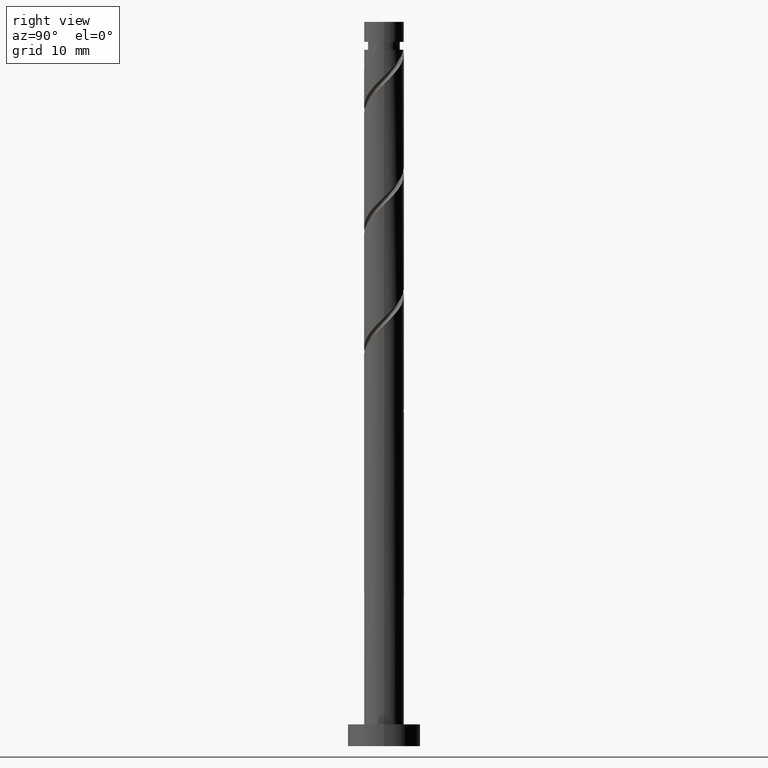
[diagram: clean part render]
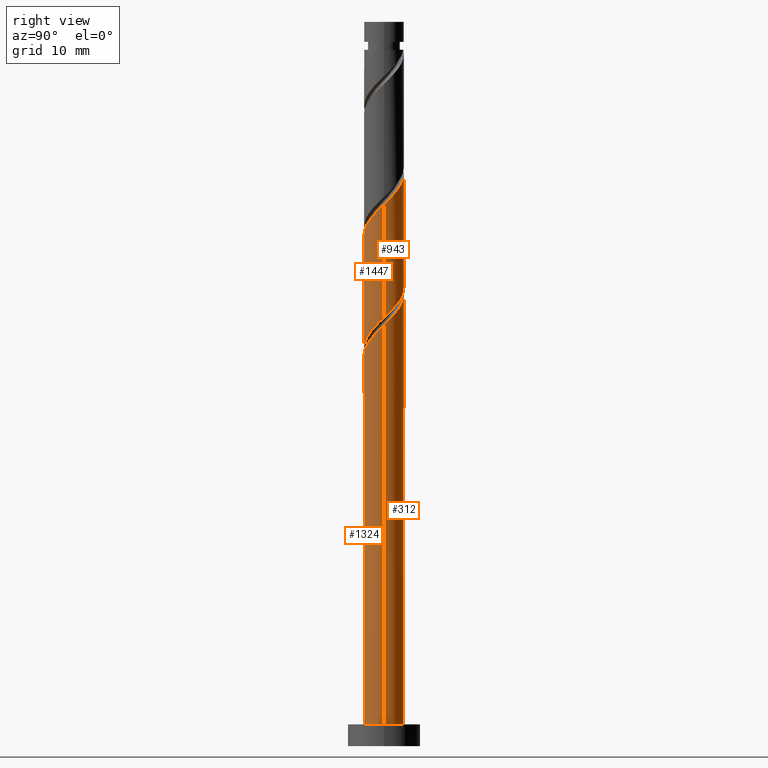
[diagram: same view with one multi-face feature highlighted, each face labeled with its STEP entity id]
A machine part, right view. The highlighted faces form ONE feature: a constant-radius fillet chain: 4 tangent blend faces with common blend radius 2.75 mm. The faces share edges in the B-rep.
Their STEP definitions:
[1] entity #1324 (Cylinder):
#8 = VERTEX_POINT ( 'NONE', #1074 ) ;
#75 = ORIENTED_EDGE ( 'NONE', *, *, #615, .T. ) ;
#80 = CARTESIAN_POINT ( 'NONE',  ( -1.313100079662429698, -2.416250852206894173, 52.62487553280764274 ) ) ;
#87 = DIRECTION ( 'NONE',  ( -0.000000000000000000, -0.000000000000000000, -1.000000000000000000 ) ) ;
#113 = CIRCLE ( 'NONE', #1360, 2.750000000000000000 ) ;
#178 = EDGE_CURVE ( 'NONE', #190, #269, #1047, .T. ) ;
#184 = DIRECTION ( 'NONE',  ( -0.000000000000000000, -0.000000000000000000, -1.000000000000000000 ) ) ;
#190 = VERTEX_POINT ( 'NONE', #1225 ) ;
#193 = LINE ( 'NONE', #1086, #454 ) ;
#210 = DIRECTION ( 'NONE',  ( 1.000000000000000000, 0.000000000000000000, 0.000000000000000000 ) ) ;
#212 = CARTESIAN_POINT ( 'NONE',  ( -0.4075039924296025018, -2.719639773233572200, 53.55080145873357367 ) ) ;
#220 = CARTESIAN_POINT ( 'NONE',  ( -2.060316917994744479, -1.821426418339389341, 51.69894960688171182 ) ) ;
#269 = VERTEX_POINT ( 'NONE', #912 ) ;
#301 = CARTESIAN_POINT ( 'NONE',  ( -2.750000000000003553, -0.03547960441305744034, 49.81322320360308709 ) ) ;
#327 = CARTESIAN_POINT ( 'NONE',  ( -0.8870498622585319959, -2.647785824621815554, 53.08783849577060465 ) ) ;
#384 = VECTOR ( 'NONE', #87, 1000.000000000000000 ) ;
#419 = LINE ( 'NONE', #523, #384 ) ;
#436 = CARTESIAN_POINT ( 'NONE',  ( -2.559029128977624357, -1.006911077029169155, 50.77302368095578800 ) ) ;
#454 = VECTOR ( 'NONE', #184, 1000.000000000000000 ) ;
#523 = CARTESIAN_POINT ( 'NONE',  ( -2.750000000000000000, 0.000000000000000000, 100.0000000000000000 ) ) ;
#537 = CARTESIAN_POINT ( 'NONE',  ( 2.750000000000000000, 3.367778697655220519E-16, 3.000000000000000000 ) ) ;
#539 = CARTESIAN_POINT ( 'NONE',  ( 1.849524856773553827, -2.092100627450284467, 55.86561627354838322 ) ) ;
#574 = EDGE_CURVE ( 'NONE', #269, #587, #193, .T. ) ;
#587 = VERTEX_POINT ( 'NONE', #537 ) ;
#615 = EDGE_CURVE ( 'NONE', #8, #587, #113, .T. ) ;
#646 = DIRECTION ( 'NONE',  ( 0.000000000000000000, 0.000000000000000000, 1.000000000000000000 ) ) ;
#648 = CARTESIAN_POINT ( 'NONE',  ( -2.749084659758183502, -0.07094739940441305293, 49.84709775502984996 ) ) ;
#655 = CARTESIAN_POINT ( 'NONE',  ( -2.750000000000003109, 1.542448295966774834E-15, 49.77920582967072249 ) ) ;
#659 = CYLINDRICAL_SURFACE ( 'NONE', #993, 2.750000000000000000 ) ;
#661 = EDGE_CURVE ( 'NONE', #190, #8, #419, .T. ) ;
#664 = CARTESIAN_POINT ( 'NONE',  ( 2.750000000000004885, -0.4483995225062563650, 57.68261965063845054 ) ) ;
#745 = CARTESIAN_POINT ( 'NONE',  ( 0.000000000000000000, 0.000000000000000000, 100.0000000000000000 ) ) ;
#748 = CARTESIAN_POINT ( 'NONE',  ( 0.5472430904086417192, -2.695000000000003837, 54.47672738465949749 ) ) ;
#862 = DIRECTION ( 'NONE',  ( -0.000000000000000000, -0.000000000000000000, -1.000000000000000000 ) ) ;
#912 = CARTESIAN_POINT ( 'NONE',  ( 2.750000000000003109, -1.587265195607455962E-15, 58.11253916300406530 ) ) ;
#990 = CARTESIAN_POINT ( 'NONE',  ( 2.453525416322490216, -1.333356764958522733, 56.79154219947431415 ) ) ;
#992 = ORIENTED_EDGE ( 'NONE', *, *, #178, .F. ) ;
#993 = AXIS2_PLACEMENT_3D ( 'NONE', #745, #862, #1465 ) ;
#1006 = CARTESIAN_POINT ( 'NONE',  ( -2.736574719032086378, -0.5556851971715316418, 50.31006071799281898 ) ) ;
#1047 =( BOUNDED_CURVE ( )  B_SPLINE_CURVE ( 2, ( #655, #301, #648, #1006, #436, #1349, #220, #1104, #80, #327, #212, #1218, #748, #1112, #1444, #539, #1209, #990, #1234, #664, #1452 ),
 .UNSPECIFIED., .F., .T. ) 
 B_SPLINE_CURVE_WITH_KNOTS ( ( 3, 2, 2, 2, 2, 2, 2, 2, 2, 2, 3 ),
 ( 0.05452480538552906958, 0.05555555555555558023, 0.06944444444444441977, 0.08333333333333337034, 0.09722222222222220989, 0.1111111111111111605, 0.1250000000000000000, 0.1388888888888888395, 0.1527777777777777901, 0.1666666666666666297, 0.1795248053855291182 ),
 .UNSPECIFIED. ) 
 CURVE ( )  GEOMETRIC_REPRESENTATION_ITEM ( )  RATIONAL_B_SPLINE_CURVE ( ( 0.9071930855141259187, 0.9080659294509735302, 0.9090909090909136125, 0.8952797754656481866, 0.9090909090909136125, 0.8952797754656481866, 0.9090909090909136125, 0.8952797754656481866, 0.9090909090909136125, 0.8952797754656481866, 0.9090909090909136125, 0.8952797754656481866, 0.9090909090909136125, 0.8952797754656481866, 0.9090909090909136125, 0.8952797754656481866, 0.9090909090909136125, 0.8952797754656481866, 0.9090909090909136125, 0.8963047551055881579, 0.9071930855141260297 ) ) 
 REPRESENTATION_ITEM ( '' )  );
#1074 = CARTESIAN_POINT ( 'NONE',  ( -2.750000000000000000, 0.000000000000000000, 3.000000000000000000 ) ) ;
#1082 = EDGE_LOOP ( 'NONE', ( #1390, #992, #1176, #75 ) ) ;
#1086 = CARTESIAN_POINT ( 'NONE',  ( 2.750000000000000000, 3.367778697655220519E-16, 100.0000000000000000 ) ) ;
#1104 = CARTESIAN_POINT ( 'NONE',  ( -1.739150297066326178, -2.184715879791973681, 52.16191256984467373 ) ) ;
#1112 = CARTESIAN_POINT ( 'NONE',  ( 1.022444303417954892, -2.598506278154678828, 54.93969034762245229 ) ) ;
#1176 = ORIENTED_EDGE ( 'NONE', *, *, #661, .T. ) ;
#1209 = CARTESIAN_POINT ( 'NONE',  ( 2.151525136548022132, -1.712728696204402823, 56.32857923651133802 ) ) ;
#1218 = CARTESIAN_POINT ( 'NONE',  ( 0.07204187739932713108, -2.791493721845329290, 54.01376442169652847 ) ) ;
#1221 = FACE_OUTER_BOUND ( 'NONE', #1082, .T. ) ;
#1225 = CARTESIAN_POINT ( 'NONE',  ( -2.750000000000003109, 1.542448295966774834E-15, 49.77920582967072249 ) ) ;
#1234 = CARTESIAN_POINT ( 'NONE',  ( 2.607560008403386753, -0.8735735816606149395, 57.25450516243728316 ) ) ;
#1324 = ADVANCED_FACE ( 'NONE', ( #1221 ), #659, .T. ) ;
#1326 = CARTESIAN_POINT ( 'NONE',  ( 0.000000000000000000, 0.000000000000000000, 3.000000000000000000 ) ) ;
#1349 = CARTESIAN_POINT ( 'NONE',  ( -2.381483538923163223, -1.458136956886807223, 51.23598664391874991 ) ) ;
#1360 = AXIS2_PLACEMENT_3D ( 'NONE', #1326, #646, #210 ) ;
#1390 = ORIENTED_EDGE ( 'NONE', *, *, #574, .F. ) ;
#1444 = CARTESIAN_POINT ( 'NONE',  ( 1.435984580095754914, -2.345303452802481203, 55.40265331058541420 ) ) ;
#1452 = CARTESIAN_POINT ( 'NONE',  ( 2.750000000000003553, -1.587265195607455962E-15, 58.11253916300406530 ) ) ;
#1465 = DIRECTION ( 'NONE',  ( -1.000000000000000000, 0.000000000000000000, 0.000000000000000000 ) ) ;
[2] entity #312 (Cylinder):
#8 = VERTEX_POINT ( 'NONE', #1074 ) ;
#54 = LINE ( 'NONE', #150, #593 ) ;
#57 = CARTESIAN_POINT ( 'NONE',  ( -2.381483538923158338, 1.458136956886805002, 49.38413479206689516 ) ) ;
#82 =( BOUNDED_CURVE ( )  B_SPLINE_CURVE ( 2, ( #1482, #448, #1370, #1147, #1032, #792, #117, #899, #1025 ),
 .UNSPECIFIED., .F., .T. ) 
 B_SPLINE_CURVE_WITH_KNOTS ( ( 3, 2, 2, 2, 3 ),
 ( 0.000000000000000000, 0.01388888888888883955, 0.02777777777777779011, 0.04166666666666662966, 0.05452480538552906958 ),
 .UNSPECIFIED. ) 
 CURVE ( )  GEOMETRIC_REPRESENTATION_ITEM ( )  RATIONAL_B_SPLINE_CURVE ( ( 0.9090909090909136125, 0.8952797754656481866, 0.9090909090909136125, 0.8952797754656481866, 0.9090909090909136125, 0.8952797754656481866, 0.9090909090909136125, 0.8963047551055882689, 0.9071930855141259187 ) ) 
 REPRESENTATION_ITEM ( '' )  );
#87 = DIRECTION ( 'NONE',  ( -0.000000000000000000, -0.000000000000000000, -1.000000000000000000 ) ) ;
#103 = CARTESIAN_POINT ( 'NONE',  ( 2.559029128977625245, 1.006911077029168267, 59.10635701428912370 ) ) ;
#117 = CARTESIAN_POINT ( 'NONE',  ( -2.607560008403386753, 0.8735735816606139403, 48.92117182910395456 ) ) ;
#126 = CARTESIAN_POINT ( 'NONE',  ( -1.022444303417955780, 2.598506278154677940, 63.27302368095577378 ) ) ;
#133 = EDGE_CURVE ( 'NONE', #790, #750, #1251, .T. ) ;
#150 = CARTESIAN_POINT ( 'NONE',  ( -2.750000000000000000, 0.000000000000000000, 100.0000000000000000 ) ) ;
#166 = CARTESIAN_POINT ( 'NONE',  ( -2.736574719032081937, 0.5556851971715314198, 50.31006071799282608 ) ) ;
#172 = CARTESIAN_POINT ( 'NONE',  ( -2.749999999999999112, 0.03547960441305787055, 50.80689823238253666 ) ) ;
#184 = DIRECTION ( 'NONE',  ( -0.000000000000000000, -0.000000000000000000, -1.000000000000000000 ) ) ;
#190 = VERTEX_POINT ( 'NONE', #1225 ) ;
#193 = LINE ( 'NONE', #1086, #454 ) ;
#197 = ORIENTED_EDGE ( 'NONE', *, *, #1418, .F. ) ;
#242 = CARTESIAN_POINT ( 'NONE',  ( -2.607560008403386753, 0.8735735816606139403, 65.58783849577059755 ) ) ;
#247 = EDGE_CURVE ( 'NONE', #269, #1189, #1406, .T. ) ;
#257 = CARTESIAN_POINT ( 'NONE',  ( -2.750000000000002665, 0.4483995225062583634, 66.01595298397175782 ) ) ;
#269 = VERTEX_POINT ( 'NONE', #912 ) ;
#279 = CARTESIAN_POINT ( 'NONE',  ( -2.749999999999999112, -8.403168682627763195E-16, 50.84091560631491546 ) ) ;
#287 = CARTESIAN_POINT ( 'NONE',  ( -2.559029128977620360, 1.006911077029168045, 49.84709775502985707 ) ) ;
#293 = CARTESIAN_POINT ( 'NONE',  ( -0.8870498622585303305, 2.647785824621812001, 47.53228294021504752 ) ) ;
#296 = AXIS2_PLACEMENT_3D ( 'NONE', #1036, #678, #372 ) ;
#312 = ADVANCED_FACE ( 'NONE', ( #470 ), #561, .T. ) ;
#341 = CARTESIAN_POINT ( 'NONE',  ( 0.4075039924296040561, 2.719639773233572200, 61.88413479206690226 ) ) ;
#372 = DIRECTION ( 'NONE',  ( -1.000000000000000000, 0.000000000000000000, 0.000000000000000000 ) ) ;
#384 = VECTOR ( 'NONE', #87, 1000.000000000000000 ) ;
#411 = CARTESIAN_POINT ( 'NONE',  ( -2.750000000000003109, 1.542448295966774834E-15, 66.44587249633738679 ) ) ;
#419 = LINE ( 'NONE', #523, #384 ) ;
#427 = CIRCLE ( 'NONE', #830, 2.750000000000000000 ) ;
#448 = CARTESIAN_POINT ( 'NONE',  ( -1.022444303417955780, 2.598506278154677940, 46.60635701428910949 ) ) ;
#453 = CARTESIAN_POINT ( 'NONE',  ( -2.151525136548022132, 1.712728696204402823, 64.66191256984467373 ) ) ;
#454 = VECTOR ( 'NONE', #184, 1000.000000000000000 ) ;
#456 = ORIENTED_EDGE ( 'NONE', *, *, #838, .T. ) ;
#470 = FACE_OUTER_BOUND ( 'NONE', #1001, .T. ) ;
#518 = CARTESIAN_POINT ( 'NONE',  ( -2.060316917994740482, 1.821426418339388231, 48.92117182910395456 ) ) ;
#523 = CARTESIAN_POINT ( 'NONE',  ( -2.750000000000000000, 0.000000000000000000, 100.0000000000000000 ) ) ;
#525 = CARTESIAN_POINT ( 'NONE',  ( 2.749084659758183502, 0.07094739940441324721, 58.18043108836319277 ) ) ;
#537 = CARTESIAN_POINT ( 'NONE',  ( 2.750000000000000000, 3.367778697655220519E-16, 3.000000000000000000 ) ) ;
#561 = CYLINDRICAL_SURFACE ( 'NONE', #296, 2.750000000000000000 ) ;
#568 = CARTESIAN_POINT ( 'NONE',  ( -0.5472430904086411640, 2.695000000000003837, 62.81006071799283319 ) ) ;
#574 = EDGE_CURVE ( 'NONE', #269, #587, #193, .T. ) ;
#585 = CARTESIAN_POINT ( 'NONE',  ( -1.849524856773554271, 2.092100627450284023, 64.19894960688171182 ) ) ;
#587 = VERTEX_POINT ( 'NONE', #537 ) ;
#593 = VECTOR ( 'NONE', #617, 1000.000000000000000 ) ;
#617 = DIRECTION ( 'NONE',  ( -0.000000000000000000, -0.000000000000000000, -1.000000000000000000 ) ) ;
#637 = CARTESIAN_POINT ( 'NONE',  ( 0.000000000000000000, 0.000000000000000000, 3.000000000000000000 ) ) ;
#641 = CARTESIAN_POINT ( 'NONE',  ( 0.5472430904086420522, 2.694999999999999396, 46.14339405132615468 ) ) ;
#661 = EDGE_CURVE ( 'NONE', #190, #8, #419, .T. ) ;
#678 = DIRECTION ( 'NONE',  ( -0.000000000000000000, -0.000000000000000000, -1.000000000000000000 ) ) ;
#692 = CARTESIAN_POINT ( 'NONE',  ( -0.5472430904086411640, 2.695000000000003837, 46.14339405132615468 ) ) ;
#728 = CARTESIAN_POINT ( 'NONE',  ( -2.749084659758179949, 0.07094739940441363579, 50.77302368095578089 ) ) ;
#750 = VERTEX_POINT ( 'NONE', #811 ) ;
#777 = AXIS2_PLACEMENT_3D ( 'NONE', #637, #1323, #1206 ) ;
#780 = CARTESIAN_POINT ( 'NONE',  ( 2.750000000000003553, -1.587265195607455962E-15, 58.11253916300406530 ) ) ;
#786 = CARTESIAN_POINT ( 'NONE',  ( -2.749999999999999556, -8.403168682627763195E-16, 50.84091560631490836 ) ) ;
#790 = VERTEX_POINT ( 'NONE', #786 ) ;
#792 = CARTESIAN_POINT ( 'NONE',  ( -2.453525416322491104, 1.333356764958522511, 48.45820886614096423 ) ) ;
#796 = CARTESIAN_POINT ( 'NONE',  ( 1.313100079662430142, 2.416250852206894173, 60.95820886614096423 ) ) ;
#811 = CARTESIAN_POINT ( 'NONE',  ( 0.5472430904086420522, 2.694999999999999396, 46.14339405132615468 ) ) ;
#812 = CARTESIAN_POINT ( 'NONE',  ( 0.000000000000000000, 0.000000000000000000, 46.14339405132619021 ) ) ;
#821 = CARTESIAN_POINT ( 'NONE',  ( -1.435984580095755359, 2.345303452802481203, 63.73598664391875701 ) ) ;
#823 = VERTEX_POINT ( 'NONE', #692 ) ;
#830 = AXIS2_PLACEMENT_3D ( 'NONE', #812, #1394, #1281 ) ;
#838 = EDGE_CURVE ( 'NONE', #823, #750, #427, .T. ) ;
#859 = CARTESIAN_POINT ( 'NONE',  ( -1.313100079662427033, 2.416250852206890620, 47.99524590317801653 ) ) ;
#887 = CARTESIAN_POINT ( 'NONE',  ( -0.4075039924296010585, 2.719639773233568647, 47.06931997725208561 ) ) ;
#899 = CARTESIAN_POINT ( 'NONE',  ( -2.750000000000003109, 0.4483995225062563095, 49.34928631730510773 ) ) ;
#905 = CARTESIAN_POINT ( 'NONE',  ( -2.750000000000002665, 1.542448295966774834E-15, 66.44587249633738679 ) ) ;
#908 = ORIENTED_EDGE ( 'NONE', *, *, #1080, .F. ) ;
#912 = CARTESIAN_POINT ( 'NONE',  ( 2.750000000000003109, -1.587265195607455962E-15, 58.11253916300406530 ) ) ;
#970 = CARTESIAN_POINT ( 'NONE',  ( -1.739150297066323292, 2.184715879791970128, 48.45820886614097134 ) ) ;
#976 = CARTESIAN_POINT ( 'NONE',  ( 2.736574719032086378, 0.5556851971715313088, 58.64339405132616179 ) ) ;
#1001 = EDGE_LOOP ( 'NONE', ( #1446, #1015, #1252, #1169, #197, #456, #1106, #908 ) ) ;
#1013 = CARTESIAN_POINT ( 'NONE',  ( 2.060316917994744479, 1.821426418339390230, 60.03228294021504752 ) ) ;
#1015 = ORIENTED_EDGE ( 'NONE', *, *, #574, .T. ) ;
#1025 = CARTESIAN_POINT ( 'NONE',  ( -2.750000000000003109, 1.542448295966774834E-15, 49.77920582967072249 ) ) ;
#1032 = CARTESIAN_POINT ( 'NONE',  ( -2.151525136548022132, 1.712728696204402823, 47.99524590317801653 ) ) ;
#1036 = CARTESIAN_POINT ( 'NONE',  ( 0.000000000000000000, 0.000000000000000000, 100.0000000000000000 ) ) ;
#1067 = CIRCLE ( 'NONE', #777, 2.750000000000000000 ) ;
#1074 = CARTESIAN_POINT ( 'NONE',  ( -2.750000000000000000, 0.000000000000000000, 3.000000000000000000 ) ) ;
#1080 = EDGE_CURVE ( 'NONE', #1189, #790, #54, .T. ) ;
#1086 = CARTESIAN_POINT ( 'NONE',  ( 2.750000000000000000, 3.367778697655220519E-16, 100.0000000000000000 ) ) ;
#1106 = ORIENTED_EDGE ( 'NONE', *, *, #133, .F. ) ;
#1119 = CARTESIAN_POINT ( 'NONE',  ( 0.07204187739932838008, 2.791493721845324849, 46.60635701428910949 ) ) ;
#1147 = CARTESIAN_POINT ( 'NONE',  ( -1.849524856773554271, 2.092100627450284023, 47.53228294021504041 ) ) ;
#1169 = ORIENTED_EDGE ( 'NONE', *, *, #661, .F. ) ;
#1189 = VERTEX_POINT ( 'NONE', #411 ) ;
#1206 = DIRECTION ( 'NONE',  ( 1.000000000000000000, 0.000000000000000000, 0.000000000000000000 ) ) ;
#1212 = EDGE_CURVE ( 'NONE', #587, #8, #1067, .T. ) ;
#1225 = CARTESIAN_POINT ( 'NONE',  ( -2.750000000000003109, 1.542448295966774834E-15, 49.77920582967072249 ) ) ;
#1243 = CARTESIAN_POINT ( 'NONE',  ( 2.750000000000003109, 0.03547960441305920282, 58.14655653693641568 ) ) ;
#1249 = CARTESIAN_POINT ( 'NONE',  ( 2.381483538923164556, 1.458136956886805224, 59.56931997725207850 ) ) ;
#1251 =( BOUNDED_CURVE ( )  B_SPLINE_CURVE ( 2, ( #279, #172, #728, #166, #287, #57, #518, #970, #859, #293, #887, #1119, #641 ),
 .UNSPECIFIED., .F., .T. ) 
 B_SPLINE_CURVE_WITH_KNOTS ( ( 3, 2, 2, 2, 2, 2, 3 ),
 ( 0.9295248053855290626, 0.9305555555555555802, 0.9444444444444444198, 0.9583333333333333703, 0.9722222222222222099, 0.9861111111111111605, 1.000000000000000000 ),
 .UNSPECIFIED. ) 
 CURVE ( )  GEOMETRIC_REPRESENTATION_ITEM ( )  RATIONAL_B_SPLINE_CURVE ( ( 0.9071930855141199235, 0.9080659294509675350, 0.9090909090909076173, 0.8952797754656421914, 0.9090909090909076173, 0.8952797754656421914, 0.9090909090909076173, 0.8952797754656421914, 0.9090909090909076173, 0.8952797754656421914, 0.9090909090909076173, 0.8952797754656421914, 0.9090909090909076173 ) ) 
 REPRESENTATION_ITEM ( '' )  );
#1252 = ORIENTED_EDGE ( 'NONE', *, *, #1212, .T. ) ;
#1267 = CARTESIAN_POINT ( 'NONE',  ( -0.07204187739932789436, 2.791493721845329290, 62.34709775502985707 ) ) ;
#1281 = DIRECTION ( 'NONE',  ( 0.000000000000000000, 1.000000000000000000, -1.261617073437677930E-14 ) ) ;
#1282 = CARTESIAN_POINT ( 'NONE',  ( -2.453525416322491104, 1.333356764958522511, 65.12487553280764985 ) ) ;
#1323 = DIRECTION ( 'NONE',  ( 0.000000000000000000, 0.000000000000000000, 1.000000000000000000 ) ) ;
#1366 = CARTESIAN_POINT ( 'NONE',  ( 0.8870498622585334392, 2.647785824621815554, 61.42117182910393325 ) ) ;
#1370 = CARTESIAN_POINT ( 'NONE',  ( -1.435984580095755359, 2.345303452802481203, 47.06931997725207850 ) ) ;
#1394 = DIRECTION ( 'NONE',  ( -2.801352646381430560E-30, -1.261617073437677141E-14, -1.000000000000000000 ) ) ;
#1406 =( BOUNDED_CURVE ( )  B_SPLINE_CURVE ( 2, ( #780, #1243, #525, #976, #103, #1249, #1013, #1477, #796, #1366, #341, #1267, #568, #126, #821, #585, #453, #1282, #242, #257, #905 ),
 .UNSPECIFIED., .F., .T. ) 
 B_SPLINE_CURVE_WITH_KNOTS ( ( 3, 2, 2, 2, 2, 2, 2, 2, 2, 2, 3 ),
 ( 0.1795248053855291182, 0.1805555555555555802, 0.1944444444444444198, 0.2083333333333333703, 0.2222222222222222099, 0.2361111111111111605, 0.2500000000000000000, 0.2638888888888888395, 0.2777777777777777901, 0.2916666666666666297, 0.3045248053855290071 ),
 .UNSPECIFIED. ) 
 CURVE ( )  GEOMETRIC_REPRESENTATION_ITEM ( )  RATIONAL_B_SPLINE_CURVE ( ( 0.9071930855141260297, 0.9080659294509736412, 0.9090909090909136125, 0.8952797754656481866, 0.9090909090909136125, 0.8952797754656481866, 0.9090909090909136125, 0.8952797754656481866, 0.9090909090909136125, 0.8952797754656481866, 0.9090909090909136125, 0.8952797754656481866, 0.9090909090909136125, 0.8952797754656481866, 0.9090909090909136125, 0.8952797754656481866, 0.9090909090909136125, 0.8952797754656481866, 0.9090909090909136125, 0.8963047551055883799, 0.9071930855141256966 ) ) 
 REPRESENTATION_ITEM ( '' )  );
#1418 = EDGE_CURVE ( 'NONE', #823, #190, #82, .T. ) ;
#1446 = ORIENTED_EDGE ( 'NONE', *, *, #247, .F. ) ;
#1477 = CARTESIAN_POINT ( 'NONE',  ( 1.739150297066326178, 2.184715879791973236, 60.49524590317800943 ) ) ;
#1482 = CARTESIAN_POINT ( 'NONE',  ( -0.5472430904086411640, 2.695000000000003837, 46.14339405132615468 ) ) ;
[3] entity #1447 (Cylinder):
#1 = ORIENTED_EDGE ( 'NONE', *, *, #965, .F. ) ;
#3 = CYLINDRICAL_SURFACE ( 'NONE', #138, 2.750000000000000000 ) ;
#41 = CARTESIAN_POINT ( 'NONE',  ( -2.151525136548020800, -1.712728696204399492, 52.62487553280764274 ) ) ;
#48 = CARTESIAN_POINT ( 'NONE',  ( -2.749999999999999556, -0.4483995225062551993, 51.27083511868053733 ) ) ;
#54 = LINE ( 'NONE', #150, #593 ) ;
#114 = EDGE_LOOP ( 'NONE', ( #896, #1008, #594, #1 ) ) ;
#130 = DIRECTION ( 'NONE',  ( -1.000000000000000000, 0.000000000000000000, 0.000000000000000000 ) ) ;
#138 = AXIS2_PLACEMENT_3D ( 'NONE', #1123, #784, #130 ) ;
#143 = CARTESIAN_POINT ( 'NONE',  ( -1.739150297066326178, -2.184715879791973681, 68.82857923651133092 ) ) ;
#150 = CARTESIAN_POINT ( 'NONE',  ( -2.750000000000000000, 0.000000000000000000, 100.0000000000000000 ) ) ;
#170 = CARTESIAN_POINT ( 'NONE',  ( 1.022444303417954892, -2.598506278154678828, 71.60635701428910238 ) ) ;
#182 = CARTESIAN_POINT ( 'NONE',  ( 2.750000000000000000, -2.352887231135773990E-16, 59.17424893964824406 ) ) ;
#239 =( BOUNDED_CURVE ( )  B_SPLINE_CURVE ( 2, ( #510, #960, #1422, #398, #850, #1311, #266, #143, #713, #285, #732, #1194, #516, #170, #624, #968, #1428, #1318, #316, #1435, #739 ),
 .UNSPECIFIED., .F., .T. ) 
 B_SPLINE_CURVE_WITH_KNOTS ( ( 3, 2, 2, 2, 2, 2, 2, 2, 2, 2, 3 ),
 ( 0.3045248053855290071, 0.3055555555555555802, 0.3194444444444444198, 0.3333333333333333703, 0.3472222222222222099, 0.3611111111111111605, 0.3750000000000000000, 0.3888888888888888395, 0.4027777777777777901, 0.4166666666666666297, 0.4295248053855290626 ),
 .UNSPECIFIED. ) 
 CURVE ( )  GEOMETRIC_REPRESENTATION_ITEM ( )  RATIONAL_B_SPLINE_CURVE ( ( 0.9071930855141256966, 0.9080659294509734192, 0.9090909090909136125, 0.8952797754656481866, 0.9090909090909136125, 0.8952797754656481866, 0.9090909090909136125, 0.8952797754656481866, 0.9090909090909136125, 0.8952797754656481866, 0.9090909090909136125, 0.8952797754656481866, 0.9090909090909136125, 0.8952797754656481866, 0.9090909090909136125, 0.8952797754656481866, 0.9090909090909136125, 0.8952797754656481866, 0.9090909090909136125, 0.8963047551055882689, 0.9071930855141259187 ) ) 
 REPRESENTATION_ITEM ( '' )  );
#246 = CARTESIAN_POINT ( 'NONE',  ( 2.750000000000000000, 3.367778697655220519E-16, 100.0000000000000000 ) ) ;
#266 = CARTESIAN_POINT ( 'NONE',  ( -2.060316917994744479, -1.821426418339389341, 68.36561627354838322 ) ) ;
#285 = CARTESIAN_POINT ( 'NONE',  ( -0.8870498622585319959, -2.647785824621815554, 69.75450516243726895 ) ) ;
#316 = CARTESIAN_POINT ( 'NONE',  ( 2.607560008403386753, -0.8735735816606149395, 73.92117182910394035 ) ) ;
#353 = FACE_OUTER_BOUND ( 'NONE', #114, .T. ) ;
#398 = CARTESIAN_POINT ( 'NONE',  ( -2.736574719032086378, -0.5556851971715316418, 66.97672738465948328 ) ) ;
#411 = CARTESIAN_POINT ( 'NONE',  ( -2.750000000000003109, 1.542448295966774834E-15, 66.44587249633738679 ) ) ;
#510 = CARTESIAN_POINT ( 'NONE',  ( -2.750000000000002665, 1.542448295966774834E-15, 66.44587249633738679 ) ) ;
#515 = CARTESIAN_POINT ( 'NONE',  ( 0.4075039924296007254, -2.719639773233568647, 55.40265331058542131 ) ) ;
#516 = CARTESIAN_POINT ( 'NONE',  ( 0.5472430904086417192, -2.695000000000003837, 71.14339405132616889 ) ) ;
#557 = EDGE_CURVE ( 'NONE', #1189, #1145, #239, .T. ) ;
#593 = VECTOR ( 'NONE', #617, 1000.000000000000000 ) ;
#594 = ORIENTED_EDGE ( 'NONE', *, *, #1080, .T. ) ;
#597 = CARTESIAN_POINT ( 'NONE',  ( 2.060316917994740482, -1.821426418339389119, 57.25450516243727606 ) ) ;
#610 = CARTESIAN_POINT ( 'NONE',  ( -2.749999999999999112, -8.403168682627763195E-16, 50.84091560631491546 ) ) ;
#617 = DIRECTION ( 'NONE',  ( -0.000000000000000000, -0.000000000000000000, -1.000000000000000000 ) ) ;
#624 = CARTESIAN_POINT ( 'NONE',  ( 1.435984580095754914, -2.345303452802481203, 72.06931997725207850 ) ) ;
#693 =( BOUNDED_CURVE ( )  B_SPLINE_CURVE ( 2, ( #849, #725, #835, #1421, #954, #1193, #597, #1401, #1178, #1071, #515, #1427, #712, #1310, #856, #731, #41, #718, #1296, #48, #610 ),
 .UNSPECIFIED., .F., .T. ) 
 B_SPLINE_CURVE_WITH_KNOTS ( ( 3, 2, 2, 2, 2, 2, 2, 2, 2, 2, 3 ),
 ( 0.8045248053855290626, 0.8055555555555555802, 0.8194444444444444198, 0.8333333333333333703, 0.8472222222222222099, 0.8611111111111111605, 0.8750000000000000000, 0.8888888888888888395, 0.9027777777777777901, 0.9166666666666666297, 0.9295248053855290626 ),
 .UNSPECIFIED. ) 
 CURVE ( )  GEOMETRIC_REPRESENTATION_ITEM ( )  RATIONAL_B_SPLINE_CURVE ( ( 0.9071930855141199235, 0.9080659294509675350, 0.9090909090909076173, 0.8952797754656421914, 0.9090909090909076173, 0.8952797754656421914, 0.9090909090909076173, 0.8952797754656421914, 0.9090909090909076173, 0.8952797754656421914, 0.9090909090909076173, 0.8952797754656421914, 0.9090909090909076173, 0.8952797754656421914, 0.9090909090909076173, 0.8952797754656421914, 0.9090909090909076173, 0.8952797754656421914, 0.9090909090909076173, 0.8963047551055822737, 0.9071930855141199235 ) ) 
 REPRESENTATION_ITEM ( '' )  );
#712 = CARTESIAN_POINT ( 'NONE',  ( -0.5472430904086417192, -2.694999999999999840, 54.47672738465949749 ) ) ;
#713 = CARTESIAN_POINT ( 'NONE',  ( -1.313100079662429698, -2.416250852206894173, 69.29154219947429283 ) ) ;
#718 = CARTESIAN_POINT ( 'NONE',  ( -2.453525416322486663, -1.333356764958520291, 52.16191256984468083 ) ) ;
#725 = CARTESIAN_POINT ( 'NONE',  ( 2.749999999999999556, -0.03547960441305889751, 59.14023156571588657 ) ) ;
#731 = CARTESIAN_POINT ( 'NONE',  ( -1.849524856773552051, -2.092100627450280026, 53.08783849577059755 ) ) ;
#732 = CARTESIAN_POINT ( 'NONE',  ( -0.4075039924296025018, -2.719639773233572200, 70.21746812540020244 ) ) ;
#739 = CARTESIAN_POINT ( 'NONE',  ( 2.750000000000003109, -1.587265195607455962E-15, 74.77920582967071539 ) ) ;
#784 = DIRECTION ( 'NONE',  ( -0.000000000000000000, -0.000000000000000000, -1.000000000000000000 ) ) ;
#786 = CARTESIAN_POINT ( 'NONE',  ( -2.749999999999999556, -8.403168682627763195E-16, 50.84091560631490836 ) ) ;
#790 = VERTEX_POINT ( 'NONE', #786 ) ;
#835 = CARTESIAN_POINT ( 'NONE',  ( 2.749084659758180837, -0.07094739940441460724, 59.10635701428913080 ) ) ;
#849 = CARTESIAN_POINT ( 'NONE',  ( 2.750000000000000000, -2.352887231135773990E-16, 59.17424893964824406 ) ) ;
#850 = CARTESIAN_POINT ( 'NONE',  ( -2.559029128977624357, -1.006911077029169155, 67.43969034762244519 ) ) ;
#856 = CARTESIAN_POINT ( 'NONE',  ( -1.435984580095753804, -2.345303452802476762, 53.55080145873357367 ) ) ;
#896 = ORIENTED_EDGE ( 'NONE', *, *, #1433, .F. ) ;
#954 = CARTESIAN_POINT ( 'NONE',  ( 2.559029128977620360, -1.006911077029168045, 58.18043108836319277 ) ) ;
#960 = CARTESIAN_POINT ( 'NONE',  ( -2.750000000000003109, -0.03547960441305531704, 66.47988987026975849 ) ) ;
#965 = EDGE_CURVE ( 'NONE', #1344, #790, #693, .T. ) ;
#968 = CARTESIAN_POINT ( 'NONE',  ( 1.849524856773553827, -2.092100627450284467, 72.53228294021504041 ) ) ;
#1008 = ORIENTED_EDGE ( 'NONE', *, *, #557, .F. ) ;
#1071 = CARTESIAN_POINT ( 'NONE',  ( 0.8870498622585297754, -2.647785824621812445, 55.86561627354836901 ) ) ;
#1080 = EDGE_CURVE ( 'NONE', #1189, #790, #54, .T. ) ;
#1085 = CARTESIAN_POINT ( 'NONE',  ( 2.750000000000003109, -1.587265195607455962E-15, 74.77920582967072960 ) ) ;
#1123 = CARTESIAN_POINT ( 'NONE',  ( 0.000000000000000000, 0.000000000000000000, 100.0000000000000000 ) ) ;
#1145 = VERTEX_POINT ( 'NONE', #1085 ) ;
#1155 = LINE ( 'NONE', #246, #1384 ) ;
#1178 = CARTESIAN_POINT ( 'NONE',  ( 1.313100079662427033, -2.416250852206890620, 56.32857923651134513 ) ) ;
#1189 = VERTEX_POINT ( 'NONE', #411 ) ;
#1193 = CARTESIAN_POINT ( 'NONE',  ( 2.381483538923157894, -1.458136956886806557, 57.71746812540023086 ) ) ;
#1194 = CARTESIAN_POINT ( 'NONE',  ( 0.07204187739932713108, -2.791493721845329290, 70.68043108836319277 ) ) ;
#1296 = CARTESIAN_POINT ( 'NONE',  ( -2.607560008403383200, -0.8735735816606116089, 51.69894960688171892 ) ) ;
#1310 = CARTESIAN_POINT ( 'NONE',  ( -1.022444303417955114, -2.598506278154673943, 54.01376442169652137 ) ) ;
#1311 = CARTESIAN_POINT ( 'NONE',  ( -2.381483538923163223, -1.458136956886807223, 67.90265331058539289 ) ) ;
#1318 = CARTESIAN_POINT ( 'NONE',  ( 2.453525416322490216, -1.333356764958522733, 73.45820886614096423 ) ) ;
#1344 = VERTEX_POINT ( 'NONE', #182 ) ;
#1363 = DIRECTION ( 'NONE',  ( -0.000000000000000000, -0.000000000000000000, -1.000000000000000000 ) ) ;
#1384 = VECTOR ( 'NONE', #1363, 1000.000000000000000 ) ;
#1401 = CARTESIAN_POINT ( 'NONE',  ( 1.739150297066322848, -2.184715879791970128, 56.79154219947429993 ) ) ;
#1421 = CARTESIAN_POINT ( 'NONE',  ( 2.736574719032081937, -0.5556851971715316418, 58.64339405132616889 ) ) ;
#1422 = CARTESIAN_POINT ( 'NONE',  ( -2.749084659758183502, -0.07094739940441305293, 66.51376442169652137 ) ) ;
#1427 = CARTESIAN_POINT ( 'NONE',  ( -0.07204187739932937928, -2.791493721845324849, 54.93969034762244519 ) ) ;
#1428 = CARTESIAN_POINT ( 'NONE',  ( 2.151525136548022132, -1.712728696204402823, 72.99524590317800232 ) ) ;
#1433 = EDGE_CURVE ( 'NONE', #1145, #1344, #1155, .T. ) ;
#1435 = CARTESIAN_POINT ( 'NONE',  ( 2.750000000000003553, -0.4483995225062580858, 74.34928631730512905 ) ) ;
#1447 = ADVANCED_FACE ( 'NONE', ( #353 ), #3, .T. ) ;
[4] entity #943 (Cylinder):
#6 = CARTESIAN_POINT ( 'NONE',  ( -2.607560008403386753, 0.8735735816606139403, 82.25450516243729737 ) ) ;
#13 = CARTESIAN_POINT ( 'NONE',  ( 2.750000000000003553, 0.03547960441305730156, 74.81322320360308709 ) ) ;
#34 = DIRECTION ( 'NONE',  ( -1.000000000000000000, 0.000000000000000000, 0.000000000000000000 ) ) ;
#61 = CARTESIAN_POINT ( 'NONE',  ( -2.749084659758179949, 0.07094739940441363579, 67.43969034762245940 ) ) ;
#72 =( BOUNDED_CURVE ( )  B_SPLINE_CURVE ( 2, ( #1374, #13, #477, #1134, #234, #591, #925, #1388, #110, #1143, #120, #365, #1275, #577, #1486, #813, #461, #1028, #6, #356, #700 ),
 .UNSPECIFIED., .F., .T. ) 
 B_SPLINE_CURVE_WITH_KNOTS ( ( 3, 2, 2, 2, 2, 2, 2, 2, 2, 2, 3 ),
 ( 0.4295248053855290626, 0.4305555555555555802, 0.4444444444444444198, 0.4583333333333333703, 0.4722222222222222099, 0.4861111111111111605, 0.5000000000000000000, 0.5138888888888888395, 0.5277777777777777901, 0.5416666666666667407, 0.5545248053855291737 ),
 .UNSPECIFIED. ) 
 CURVE ( )  GEOMETRIC_REPRESENTATION_ITEM ( )  RATIONAL_B_SPLINE_CURVE ( ( 0.9071930855141259187, 0.9080659294509735302, 0.9090909090909136125, 0.8952797754656481866, 0.9090909090909136125, 0.8952797754656481866, 0.9090909090909136125, 0.8952797754656481866, 0.9090909090909136125, 0.8952797754656481866, 0.9090909090909136125, 0.8952797754656481866, 0.9090909090909136125, 0.8952797754656481866, 0.9090909090909136125, 0.8952797754656481866, 0.9090909090909136125, 0.8952797754656481866, 0.9090909090909136125, 0.8963047551055881579, 0.9071930855141261407 ) ) 
 REPRESENTATION_ITEM ( '' )  );
#78 = CARTESIAN_POINT ( 'NONE',  ( 2.750000000000000000, -2.352887231135773990E-16, 59.17424893964824406 ) ) ;
#89 = CARTESIAN_POINT ( 'NONE',  ( -2.750000000000003109, 1.841227626904649215E-15, 83.11253916300408662 ) ) ;
#92 = ORIENTED_EDGE ( 'NONE', *, *, #1433, .T. ) ;
#110 = CARTESIAN_POINT ( 'NONE',  ( 1.313100079662430142, 2.416250852206894173, 77.62487553280763564 ) ) ;
#120 = CARTESIAN_POINT ( 'NONE',  ( 0.4075039924296040561, 2.719639773233572200, 78.55080145873355946 ) ) ;
#176 = CARTESIAN_POINT ( 'NONE',  ( -2.381483538923158338, 1.458136956886805002, 66.05080145873357367 ) ) ;
#179 = VERTEX_POINT ( 'NONE', #89 ) ;
#182 = CARTESIAN_POINT ( 'NONE',  ( 2.750000000000000000, -2.352887231135773990E-16, 59.17424893964824406 ) ) ;
#199 = EDGE_CURVE ( 'NONE', #179, #1038, #894, .T. ) ;
#204 = DIRECTION ( 'NONE',  ( -0.000000000000000000, -0.000000000000000000, -1.000000000000000000 ) ) ;
#234 = CARTESIAN_POINT ( 'NONE',  ( 2.559029128977625245, 1.006911077029168267, 75.77302368095578800 ) ) ;
#246 = CARTESIAN_POINT ( 'NONE',  ( 2.750000000000000000, 3.367778697655220519E-16, 100.0000000000000000 ) ) ;
#265 = CARTESIAN_POINT ( 'NONE',  ( 0.000000000000000000, 0.000000000000000000, 100.0000000000000000 ) ) ;
#299 = CARTESIAN_POINT ( 'NONE',  ( 1.849524856773553383, 2.092100627450279138, 61.42117182910392614 ) ) ;
#308 = CARTESIAN_POINT ( 'NONE',  ( 0.07204187739932838008, 2.791493721845324849, 63.27302368095578089 ) ) ;
#325 = CARTESIAN_POINT ( 'NONE',  ( 1.435984580095755136, 2.345303452802475874, 61.88413479206690226 ) ) ;
#338 = EDGE_CURVE ( 'NONE', #1145, #179, #72, .T. ) ;
#356 = CARTESIAN_POINT ( 'NONE',  ( -2.750000000000004885, 0.4483995225062530898, 82.68261965063845764 ) ) ;
#365 = CARTESIAN_POINT ( 'NONE',  ( -0.07204187739932789436, 2.791493721845329290, 79.01376442169653558 ) ) ;
#367 = ORIENTED_EDGE ( 'NONE', *, *, #674, .F. ) ;
#393 = CARTESIAN_POINT ( 'NONE',  ( -2.749999999999999556, -8.403168682627763195E-16, 67.50758227298157976 ) ) ;
#412 = CARTESIAN_POINT ( 'NONE',  ( -2.736574719032081937, 0.5556851971715314198, 66.97672738465948328 ) ) ;
#434 = CARTESIAN_POINT ( 'NONE',  ( 2.750000000000000444, 0.4483995225062535894, 59.60416845201387304 ) ) ;
#461 = CARTESIAN_POINT ( 'NONE',  ( -2.151525136548022132, 1.712728696204402823, 81.32857923651134513 ) ) ;
#477 = CARTESIAN_POINT ( 'NONE',  ( 2.749084659758183502, 0.07094739940441324721, 74.84709775502986417 ) ) ;
#488 = FACE_OUTER_BOUND ( 'NONE', #1480, .T. ) ;
#530 = CARTESIAN_POINT ( 'NONE',  ( 0.5472430904086421632, 2.694999999999999840, 62.81006071799283319 ) ) ;
#577 = CARTESIAN_POINT ( 'NONE',  ( -1.022444303417955780, 2.598506278154677940, 79.93969034762245940 ) ) ;
#591 = CARTESIAN_POINT ( 'NONE',  ( 2.381483538923164556, 1.458136956886805224, 76.23598664391874991 ) ) ;
#600 = ORIENTED_EDGE ( 'NONE', *, *, #199, .F. ) ;
#631 = CARTESIAN_POINT ( 'NONE',  ( -0.4075039924296010585, 2.719639773233568647, 63.73598664391874280 ) ) ;
#674 = EDGE_CURVE ( 'NONE', #1038, #1344, #1471, .T. ) ;
#700 = CARTESIAN_POINT ( 'NONE',  ( -2.750000000000003109, 1.841227626904649215E-15, 83.11253916300410083 ) ) ;
#722 = ORIENTED_EDGE ( 'NONE', *, *, #338, .F. ) ;
#746 = CARTESIAN_POINT ( 'NONE',  ( 2.453525416322486663, 1.333356764958519625, 60.49524590317800232 ) ) ;
#754 = CARTESIAN_POINT ( 'NONE',  ( 1.022444303417954448, 2.598506278154673943, 62.34709775502985707 ) ) ;
#813 = CARTESIAN_POINT ( 'NONE',  ( -1.849524856773554271, 2.092100627450284023, 80.86561627354841164 ) ) ;
#863 = CARTESIAN_POINT ( 'NONE',  ( -2.060316917994740482, 1.821426418339388231, 65.58783849577061176 ) ) ;
#869 = CARTESIAN_POINT ( 'NONE',  ( -2.559029128977620360, 1.006911077029168045, 66.51376442169652137 ) ) ;
#877 = CARTESIAN_POINT ( 'NONE',  ( 2.151525136548020800, 1.712728696204399492, 60.95820886614096423 ) ) ;
#892 = CARTESIAN_POINT ( 'NONE',  ( -1.739150297066323292, 2.184715879791970128, 65.12487553280763564 ) ) ;
#894 = LINE ( 'NONE', #1357, #962 ) ;
#925 = CARTESIAN_POINT ( 'NONE',  ( 2.060316917994744479, 1.821426418339390230, 76.69894960688171182 ) ) ;
#939 = CYLINDRICAL_SURFACE ( 'NONE', #1287, 2.750000000000000000 ) ;
#943 = ADVANCED_FACE ( 'NONE', ( #488 ), #939, .T. ) ;
#962 = VECTOR ( 'NONE', #204, 1000.000000000000000 ) ;
#974 = CARTESIAN_POINT ( 'NONE',  ( -2.749999999999999112, -8.403168682627763195E-16, 67.50758227298157976 ) ) ;
#1028 = CARTESIAN_POINT ( 'NONE',  ( -2.453525416322491104, 1.333356764958522511, 81.79154219947427862 ) ) ;
#1038 = VERTEX_POINT ( 'NONE', #393 ) ;
#1085 = CARTESIAN_POINT ( 'NONE',  ( 2.750000000000003109, -1.587265195607455962E-15, 74.77920582967072960 ) ) ;
#1134 = CARTESIAN_POINT ( 'NONE',  ( 2.736574719032086378, 0.5556851971715313088, 75.31006071799279766 ) ) ;
#1143 = CARTESIAN_POINT ( 'NONE',  ( 0.8870498622585334392, 2.647785824621815554, 78.08783849577061176 ) ) ;
#1145 = VERTEX_POINT ( 'NONE', #1085 ) ;
#1155 = LINE ( 'NONE', #246, #1384 ) ;
#1184 = DIRECTION ( 'NONE',  ( -0.000000000000000000, -0.000000000000000000, -1.000000000000000000 ) ) ;
#1207 = CARTESIAN_POINT ( 'NONE',  ( 2.607560008403383645, 0.8735735816606123860, 60.03228294021505462 ) ) ;
#1275 = CARTESIAN_POINT ( 'NONE',  ( -0.5472430904086411640, 2.695000000000003837, 79.47672738465951170 ) ) ;
#1287 = AXIS2_PLACEMENT_3D ( 'NONE', #265, #1184, #34 ) ;
#1333 = CARTESIAN_POINT ( 'NONE',  ( -1.313100079662427033, 2.416250852206890620, 64.66191256984467373 ) ) ;
#1344 = VERTEX_POINT ( 'NONE', #182 ) ;
#1357 = CARTESIAN_POINT ( 'NONE',  ( -2.750000000000000000, 0.000000000000000000, 100.0000000000000000 ) ) ;
#1363 = DIRECTION ( 'NONE',  ( -0.000000000000000000, -0.000000000000000000, -1.000000000000000000 ) ) ;
#1374 = CARTESIAN_POINT ( 'NONE',  ( 2.750000000000003109, -1.587265195607455962E-15, 74.77920582967071539 ) ) ;
#1384 = VECTOR ( 'NONE', #1363, 1000.000000000000000 ) ;
#1388 = CARTESIAN_POINT ( 'NONE',  ( 1.739150297066326178, 2.184715879791973236, 77.16191256984470215 ) ) ;
#1433 = EDGE_CURVE ( 'NONE', #1145, #1344, #1155, .T. ) ;
#1442 = CARTESIAN_POINT ( 'NONE',  ( -2.749999999999999112, 0.03547960441305787055, 67.47356489904920807 ) ) ;
#1458 = CARTESIAN_POINT ( 'NONE',  ( -0.8870498622585303305, 2.647785824621812001, 64.19894960688171182 ) ) ;
#1471 =( BOUNDED_CURVE ( )  B_SPLINE_CURVE ( 2, ( #974, #1442, #61, #412, #869, #176, #863, #892, #1333, #1458, #631, #308, #530, #754, #325, #299, #877, #746, #1207, #434, #78 ),
 .UNSPECIFIED., .F., .T. ) 
 B_SPLINE_CURVE_WITH_KNOTS ( ( 3, 2, 2, 2, 2, 2, 2, 2, 2, 2, 3 ),
 ( 0.6795248053855290626, 0.6805555555555555802, 0.6944444444444444198, 0.7083333333333333703, 0.7222222222222222099, 0.7361111111111111605, 0.7500000000000000000, 0.7638888888888888395, 0.7777777777777777901, 0.7916666666666666297, 0.8045248053855290626 ),
 .UNSPECIFIED. ) 
 CURVE ( )  GEOMETRIC_REPRESENTATION_ITEM ( )  RATIONAL_B_SPLINE_CURVE ( ( 0.9071930855141199235, 0.9080659294509675350, 0.9090909090909076173, 0.8952797754656421914, 0.9090909090909076173, 0.8952797754656421914, 0.9090909090909076173, 0.8952797754656421914, 0.9090909090909076173, 0.8952797754656421914, 0.9090909090909076173, 0.8952797754656421914, 0.9090909090909076173, 0.8952797754656421914, 0.9090909090909076173, 0.8952797754656421914, 0.9090909090909076173, 0.8952797754656421914, 0.9090909090909076173, 0.8963047551055822737, 0.9071930855141199235 ) ) 
 REPRESENTATION_ITEM ( '' )  );
#1480 = EDGE_LOOP ( 'NONE', ( #722, #92, #367, #600 ) ) ;
#1486 = CARTESIAN_POINT ( 'NONE',  ( -1.435984580095755359, 2.345303452802481203, 80.40265331058540710 ) ) ;